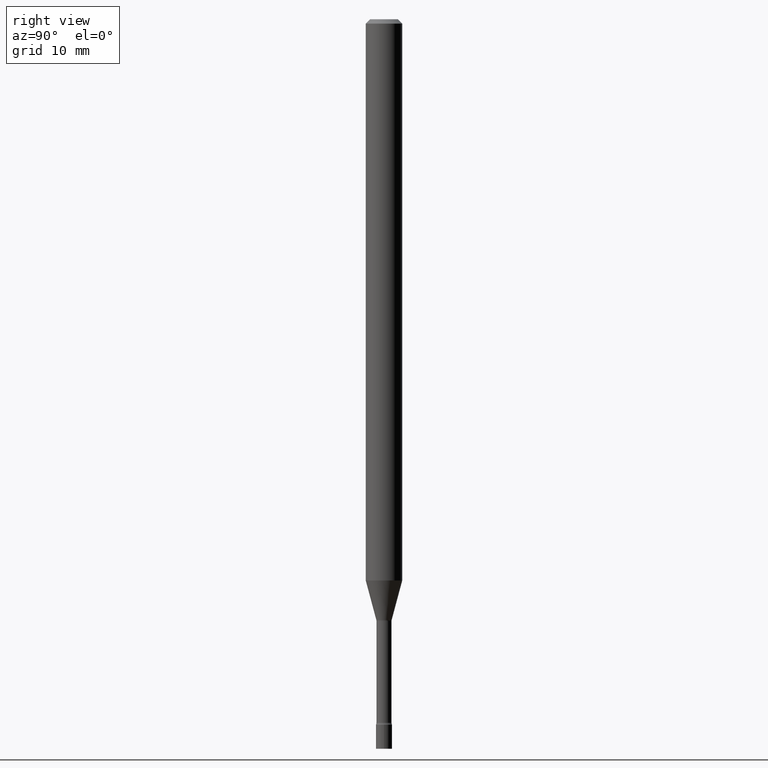
[diagram: clean part render]
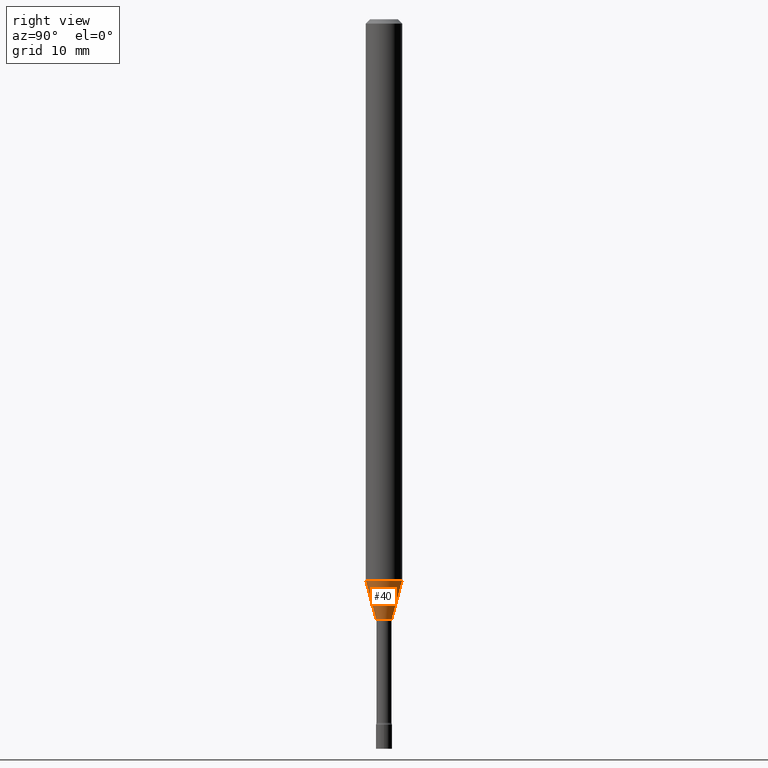
[diagram: same view with one face highlighted and labeled with its STEP entity id]
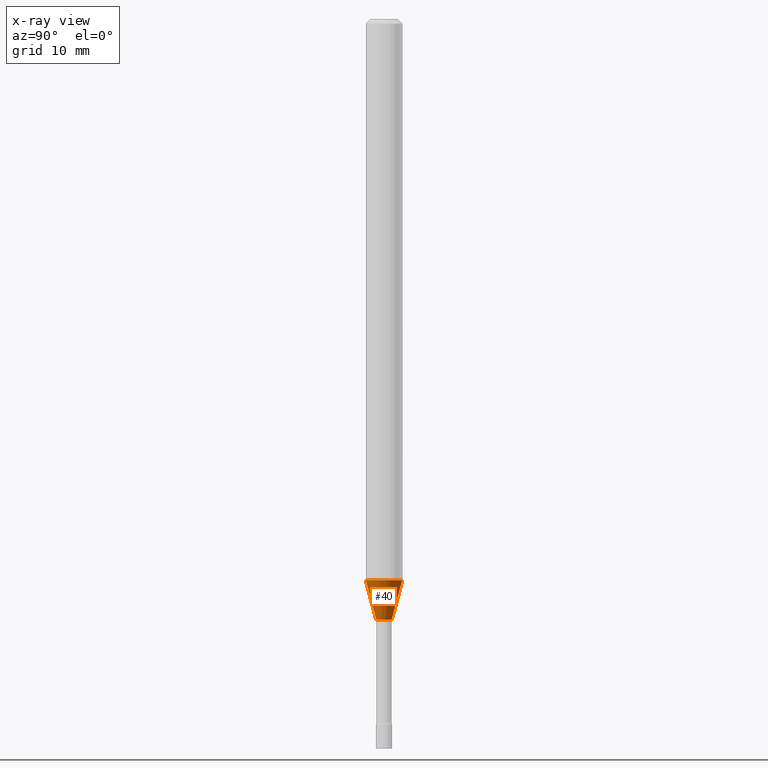
[diagram: x-ray of the same camera — body ghosted, the highlighted face saturated]
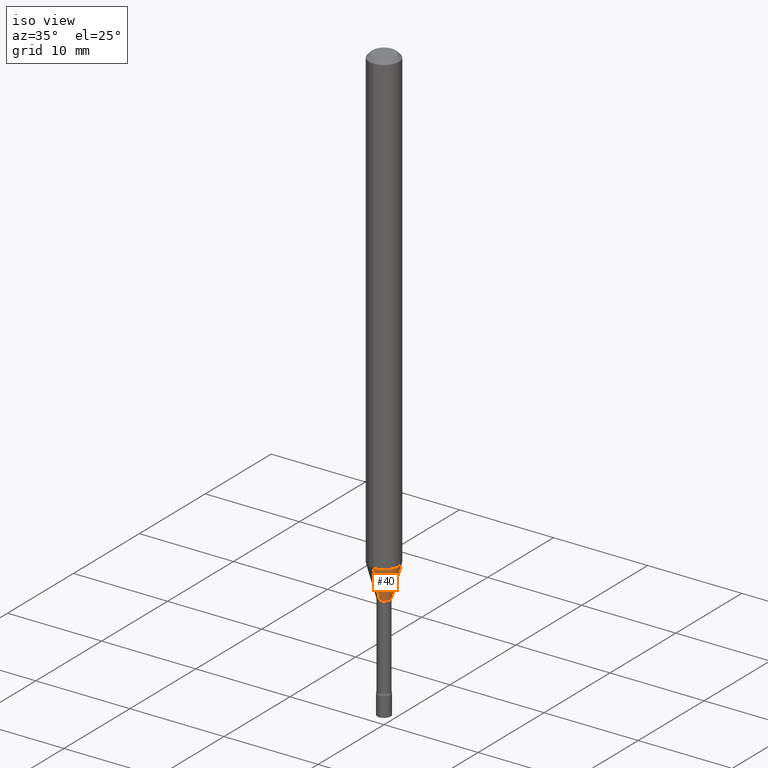
[diagram: same view with one face highlighted and labeled with its STEP entity id]
A machine part, right view. The second image highlights one B-rep face of the part: STEP entity #40.
The next image is the same camera in x-ray: the body ghosted, the highlighted face saturated — about 0% of this face is hidden behind the body in this view.
A second angle (iso view) of the same face is appended — the face is thin or edge-on in the first view.
In plain terms, the highlighted conical surface has half-angle 15 deg.
Its self-contained STEP definition (entity closure, byte-faithful):
#2 = CIRCLE ( 'NONE', #287, 0.06250000000000000000 ) ;
#7 = CARTESIAN_POINT ( 'NONE',  ( -1.840786654675862271E-16, -0.02636111260567116504, -2.058092501787273321 ) ) ;
#16 = ORIENTED_EDGE ( 'NONE', *, *, #465, .F. ) ;
#17 = VECTOR ( 'NONE', #219, 39.37007874015748143 ) ;
#31 = LINE ( 'NONE', #394, #103 ) ;
#40 = ADVANCED_FACE ( 'NONE', ( #302 ), #84, .T. ) ;
#53 = VERTEX_POINT ( 'NONE', #87 ) ;
#73 = DIRECTION ( 'NONE',  ( -6.982962677686265922E-15, -1.000000000000000000, 0.000000000000000000 ) ) ;
#84 = CONICAL_SURFACE ( 'NONE', #481, 0.02636111260566398329, 0.2617993877991496854 ) ;
#87 = CARTESIAN_POINT ( 'NONE',  ( 3.156980902676227691E-16, 0.02636111260565679806, -2.058092501787273321 ) ) ;
#101 = DIRECTION ( 'NONE',  ( -2.445418385667774846E-29, 3.491553543893765226E-15, 1.000000000000000000 ) ) ;
#103 = VECTOR ( 'NONE', #162, 39.37007874015748854 ) ;
#115 = CARTESIAN_POINT ( 'NONE',  ( 5.032897243275585595E-29, -7.185940168276538643E-15, -2.058092501787273321 ) ) ;
#121 = DIRECTION ( 'NONE',  ( -2.445418385667774846E-29, 3.491553543893765226E-15, 1.000000000000000000 ) ) ;
#138 = CARTESIAN_POINT ( 'NONE',  ( -4.364351673553447815E-16, -0.06250000000000673073, -1.923220337902600718 ) ) ;
#157 = VERTEX_POINT ( 'NONE', #138 ) ;
#162 = DIRECTION ( 'NONE',  ( -1.807323732225326195E-15, -0.2588190451025176309, 0.9659258262890690894 ) ) ;
#171 = EDGE_CURVE ( 'NONE', #53, #216, #335, .T. ) ;
#174 = ORIENTED_EDGE ( 'NONE', *, *, #188, .F. ) ;
#178 = CARTESIAN_POINT ( 'NONE',  ( 4.703078373997210395E-29, -6.715026786492391086E-15, -1.923220337902600940 ) ) ;
#188 = EDGE_CURVE ( 'NONE', #157, #216, #2, .T. ) ;
#201 = AXIS2_PLACEMENT_3D ( 'NONE', #115, #121, #203 ) ;
#203 = DIRECTION ( 'NONE',  ( -6.982962677686265922E-15, -1.000000000000000000, 0.000000000000000000 ) ) ;
#216 = VERTEX_POINT ( 'NONE', #452 ) ;
#219 = DIRECTION ( 'NONE',  ( 1.839019923739596371E-15, 0.2588190451025244032, 0.9659258262890673130 ) ) ;
#221 = EDGE_LOOP ( 'NONE', ( #432, #509, #174, #16 ) ) ;
#223 = VERTEX_POINT ( 'NONE', #7 ) ;
#249 = CARTESIAN_POINT ( 'NONE',  ( 1.873069706851357876E-16, 0.02636111260565679806, -2.058092501787273321 ) ) ;
#267 = DIRECTION ( 'NONE',  ( -2.445418385667774846E-29, 3.491553543893765226E-15, 1.000000000000000000 ) ) ;
#287 = AXIS2_PLACEMENT_3D ( 'NONE', #178, #101, #368 ) ;
#302 = FACE_OUTER_BOUND ( 'NONE', #221, .T. ) ;
#335 = LINE ( 'NONE', #249, #17 ) ;
#368 = DIRECTION ( 'NONE',  ( -6.982962677686265922E-15, -1.000000000000000000, 4.370956789862821150E-15 ) ) ;
#373 = CIRCLE ( 'NONE', #201, 0.02636111260566398329 ) ;
#394 = CARTESIAN_POINT ( 'NONE',  ( -1.840786654675862271E-16, -0.02636111260567116504, -2.058092501787273321 ) ) ;
#432 = ORIENTED_EDGE ( 'NONE', *, *, #519, .T. ) ;
#452 = CARTESIAN_POINT ( 'NONE',  ( 4.440892098501093562E-16, 0.06249999999999326233, -1.923220337902601162 ) ) ;
#465 = EDGE_CURVE ( 'NONE', #223, #157, #31, .T. ) ;
#467 = CARTESIAN_POINT ( 'NONE',  ( 5.032897243275585595E-29, -7.185940168276538643E-15, -2.058092501787273321 ) ) ;
#481 = AXIS2_PLACEMENT_3D ( 'NONE', #467, #267, #73 ) ;
#509 = ORIENTED_EDGE ( 'NONE', *, *, #171, .T. ) ;
#519 = EDGE_CURVE ( 'NONE', #223, #53, #373, .T. ) ;